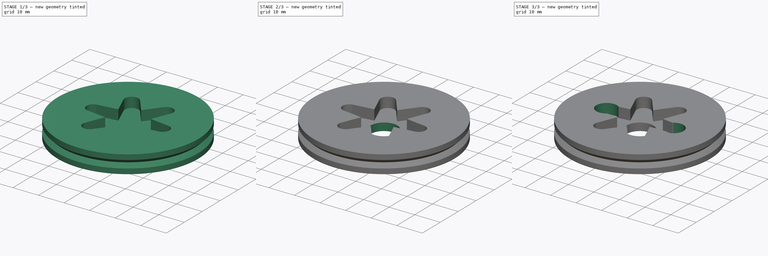
[diagram: build sequence overview — one tinted view per stage of 3, left to right]
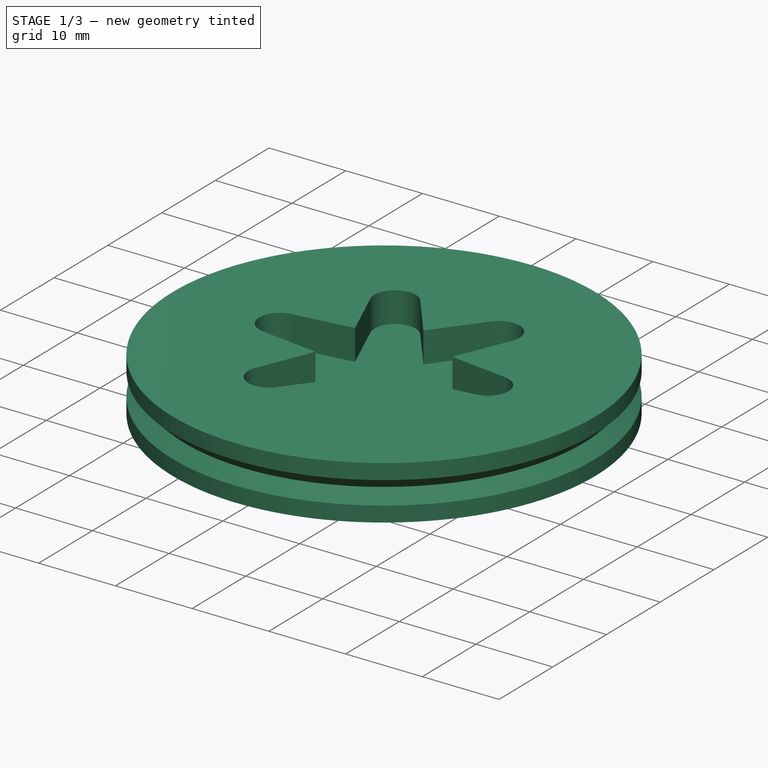
[diagram: stage 1 of 3 — iso view after this stage's code; geometry added in this stage tinted green]
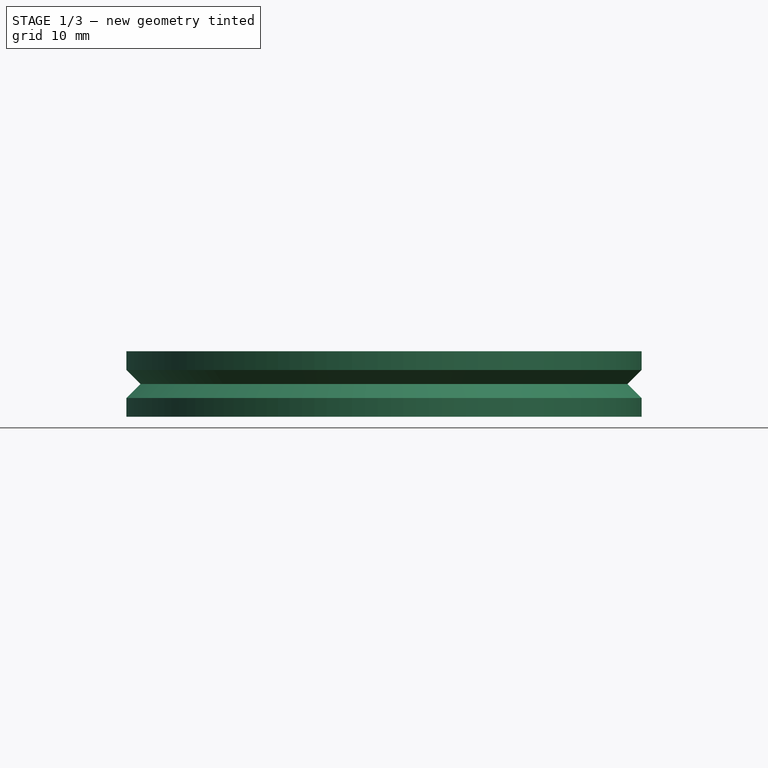
[diagram: stage 1 of 3 — front view after this stage's code; geometry added in this stage tinted green]
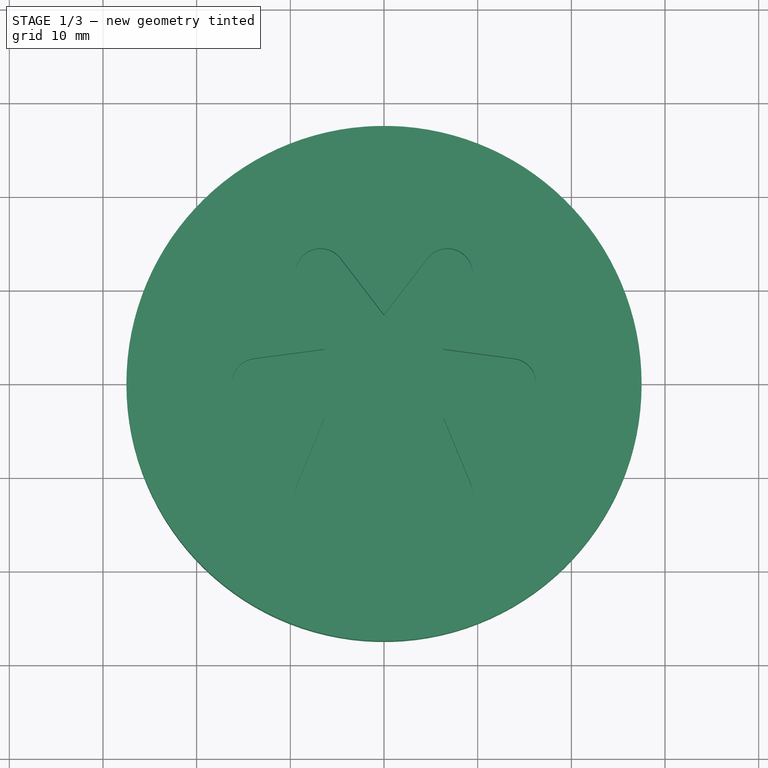
[diagram: stage 1 of 3 — top view after this stage's code; geometry added in this stage tinted green]
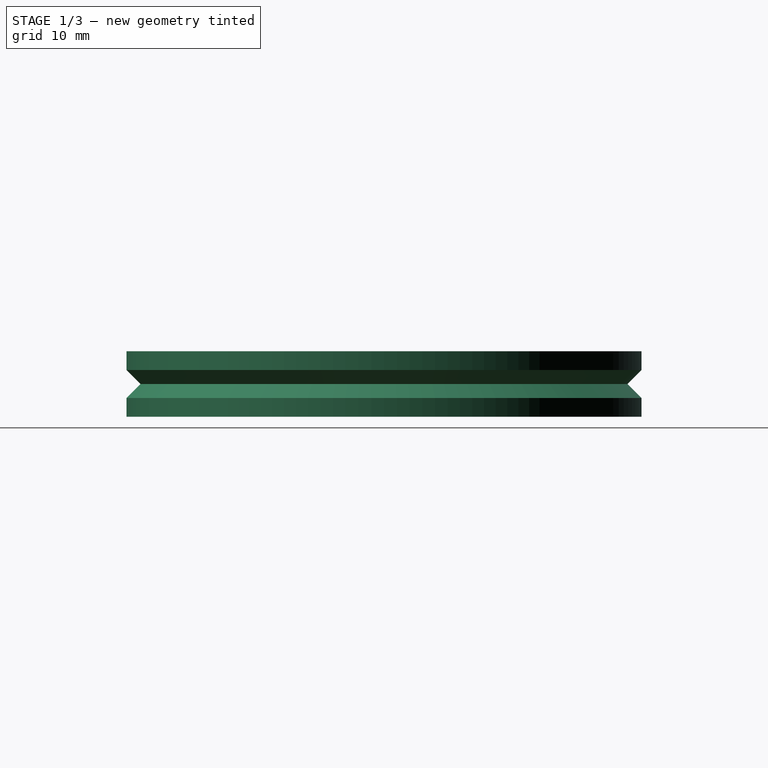
[diagram: stage 1 of 3 — right view after this stage's code; geometry added in this stage tinted green]
FCSTD DOCUMENT  (FreeCAD 0.14R3702 (Git))
Label: Renacuajo-wheel-6-arms-horn
License: CC-BY 3.0
LicenseURL: http://creativecommons.org/licenses/by/3.0/
objects: Sketcher::SketchObject×4, PartDesign::Pocket×3, Part::Feature×2, PartDesign::PolarPattern×2, PartDesign::Revolution×1, Part::Offset×1, Part::Cut×1
note: 18 computed .brp shape members not serialized (recipe doc carries the construction recipe); baked Part::Feature solids carry a one-line shape summary decoded from their .brp

FEATURE [Sketcher::SketchObject] Sketch  label="wheel-generic-sketch"
  Placement = pos=(0,0,0) rot=(1,0,0;1.5708rad)
  sketch-geometry (7):
    g0: LineSegment StartX=0 StartY=-3.5 StartZ=0 EndX=0 EndY=3.5 EndZ=0
    g1: LineSegment StartX=0 StartY=3.5 StartZ=0 EndX=27.5 EndY=3.5 EndZ=0
    g2: LineSegment StartX=27.5 StartY=3.5 StartZ=0 EndX=27.5 EndY=1.5 EndZ=0
    g3: LineSegment StartX=27.5 StartY=1.5 StartZ=0 EndX=26 EndY=0 EndZ=0
    g4: LineSegment StartX=26 StartY=0 StartZ=0 EndX=27.5 EndY=-1.5 EndZ=0
    g5: LineSegment StartX=27.5 StartY=-1.5 StartZ=0 EndX=27.5 EndY=-3.5 EndZ=0
    g6: LineSegment StartX=27.5 StartY=-3.5 StartZ=0 EndX=0 EndY=-3.5 EndZ=0
  constraints (20):
    c: Vertical(g0)
    c: Coincident(g0,g1)
    c: Horizontal(g1)
    c: Coincident(g1,g2)
    c: Vertical(g2)
    c: Coincident(g2,g3)
    c: Coincident(g3,g4)
    c: Coincident(g4,g5)
    c: Coincident(g5,g6)
    c: Coincident(g6,g0)
    c: Horizontal(g6)
    c: Vertical(g5)
    c: PointOnObject(g0,g-2)
    c: Symmetric(g0,g0,g-1)
    c: PointOnObject(g3,g-1)
    c: Symmetric(g4,g2,g-1)
    c: Angle(g3,g-1) = 2.35619
    c: DistanceY(g4,g2) = 3
    c: DistanceX(g1) = 27.5
    c: DistanceY(g0) = 7
FEATURE [PartDesign::Revolution] Revolution  label="wheel-generic"
  Angle = 360
  Axis = (0,0,1)
  Base = (0,0,0)
  Placement = pos=(0,0,0) rot=(1,0,0;1.5708rad)
  ReferenceAxis = -> Sketch [V_Axis]
  Reversed = true
  Sketch = -> Sketch
FEATURE [Part::Feature] Fusion001  label="6-arm-horn-body"
  shape: bbox 31.9 x 28.27 x 6 mm, 26 faces (baked)
FEATURE [Part::Offset] Offset001  label="horn-body-offset"
  Fill = false
  Intersection = false
  Join = 2
  Mode = 0
  Placement = pos=(0,0,-0.2) rot=(0,0,1;0rad)
  SelfIntersection = false
  Source = -> Fusion001
  Value = 0.29
FEATURE [Part::Cut] Cut  label="wheel-horn-room"
  Base = -> Revolution
  Tool = -> Offset001
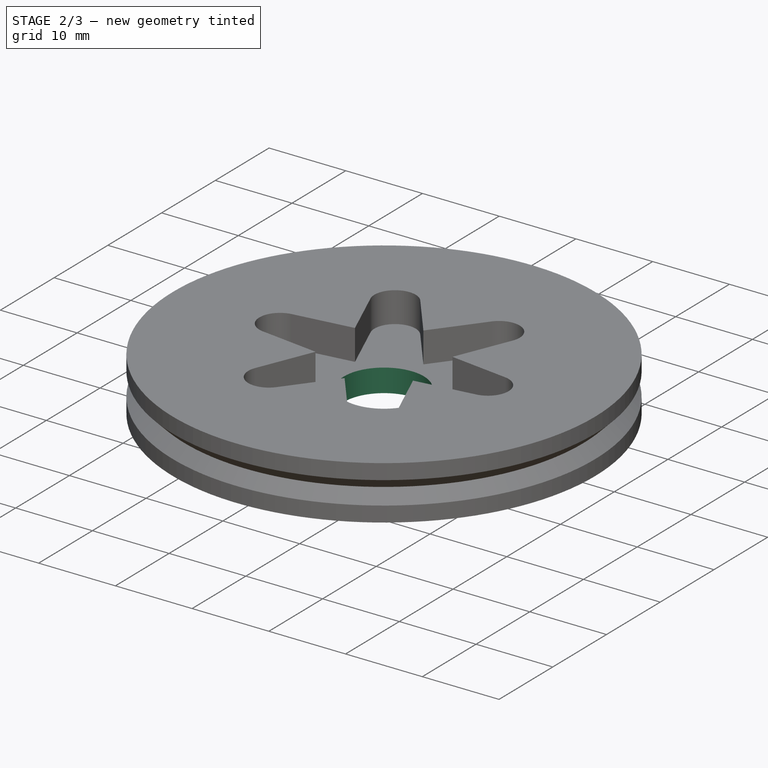
[diagram: stage 2 of 3 — iso view after this stage's code; geometry added in this stage tinted green]
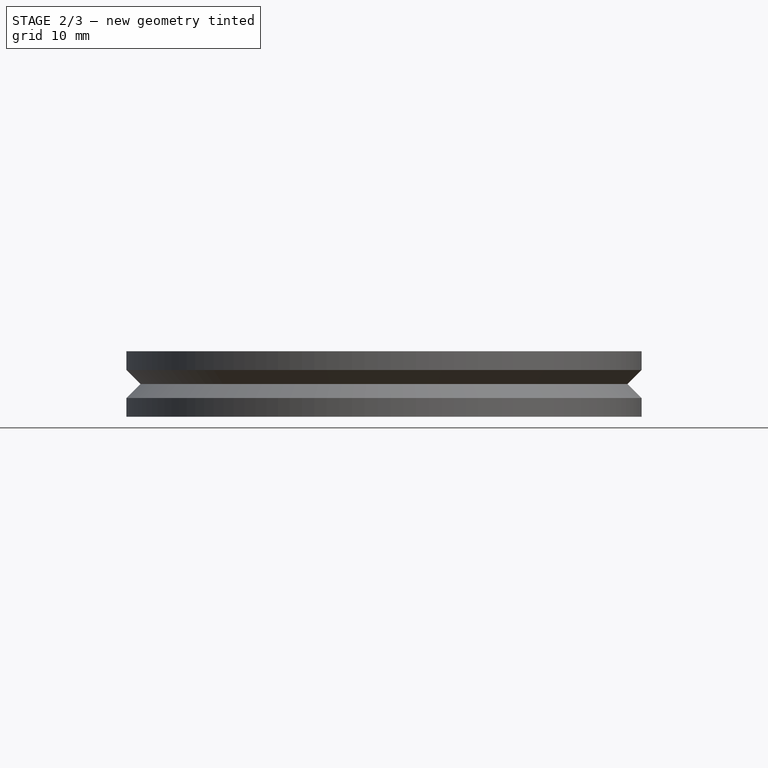
[diagram: stage 2 of 3 — front view after this stage's code; geometry added in this stage tinted green]
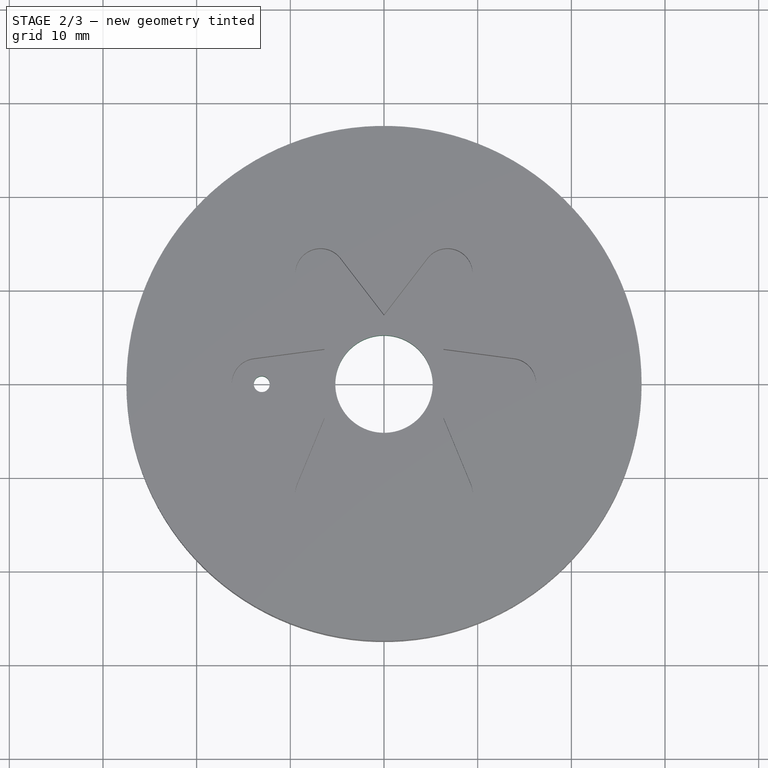
[diagram: stage 2 of 3 — top view after this stage's code; geometry added in this stage tinted green]
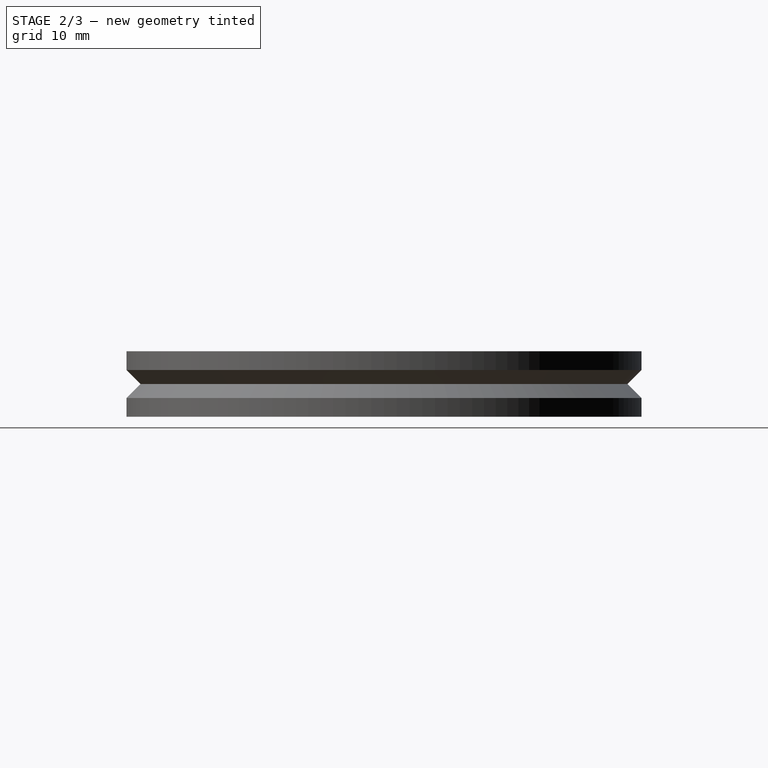
[diagram: stage 2 of 3 — right view after this stage's code; geometry added in this stage tinted green]
FEATURE [Sketcher::SketchObject] Sketch001  label="shaft-drill-sketch"
  Placement = pos=(0,0,-0.49) rot=(0,0,1;0rad)
  Support = -> Cut [Face28]
  sketch-geometry (1):
    g0: Circle CenterX=0 CenterY=0 CenterZ=0 NormalX=0 NormalY=0 NormalZ=1 Radius=5.2
  constraints (2):
    c: Coincident(g0,g-1)
    c: Radius(g0) = 5.2
FEATURE [PartDesign::Pocket] Pocket  label="shaft-drill"
  Length = 5
  Sketch = -> Sketch001
  Type = 1
FEATURE [Sketcher::SketchObject] Sketch002  label="horn-drill-master-sketch"
  Placement = pos=(0,0,-0.49) rot=(0,0,1;0rad)
  Support = -> Pocket [Face28]
  sketch-geometry (1):
    g0: Circle CenterX=-13.05 CenterY=0 CenterZ=0 NormalX=0 NormalY=0 NormalZ=1 Radius=0.85
  constraints (3):
    c: PointOnObject(g0,g-1)
    c: Radius(g0) = 0.85
    c: DistanceX(g-1,g0) = -13.05
FEATURE [PartDesign::Pocket] Pocket001  label="horn-drill-master"
  Length = 5
  Sketch = -> Sketch002
  Type = 1
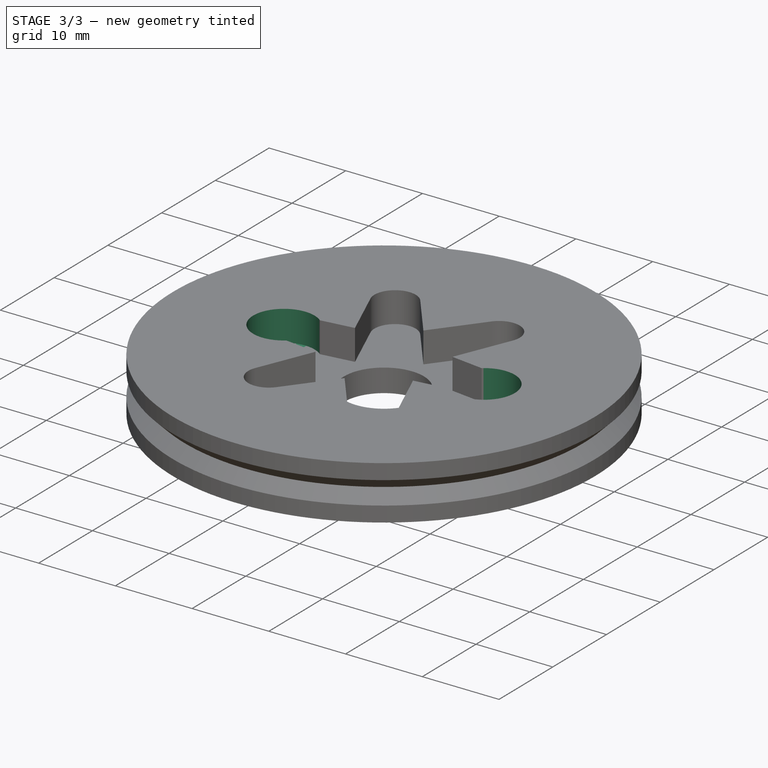
[diagram: stage 3 of 3 — iso view after this stage's code; geometry added in this stage tinted green]
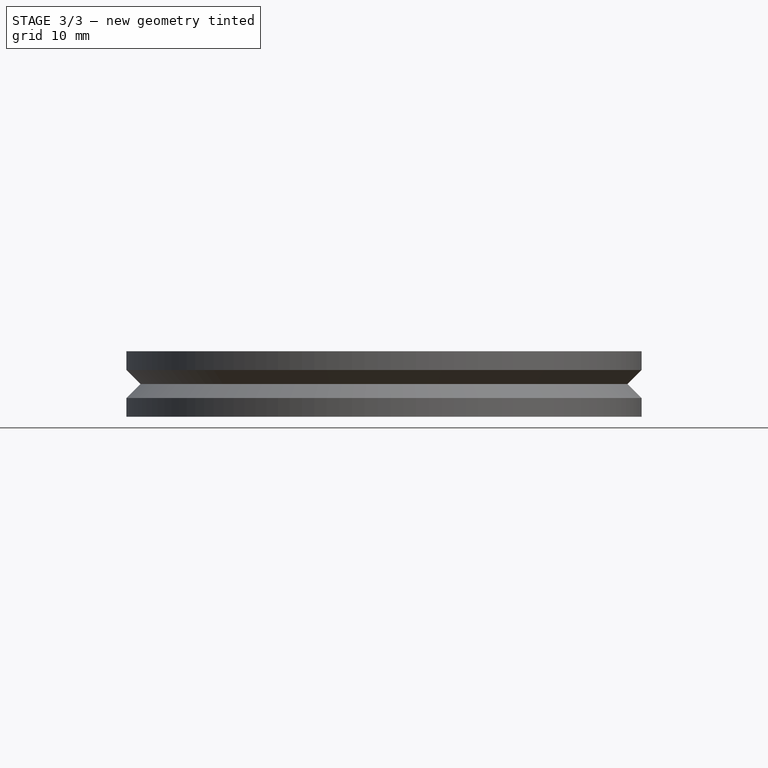
[diagram: stage 3 of 3 — front view after this stage's code; geometry added in this stage tinted green]
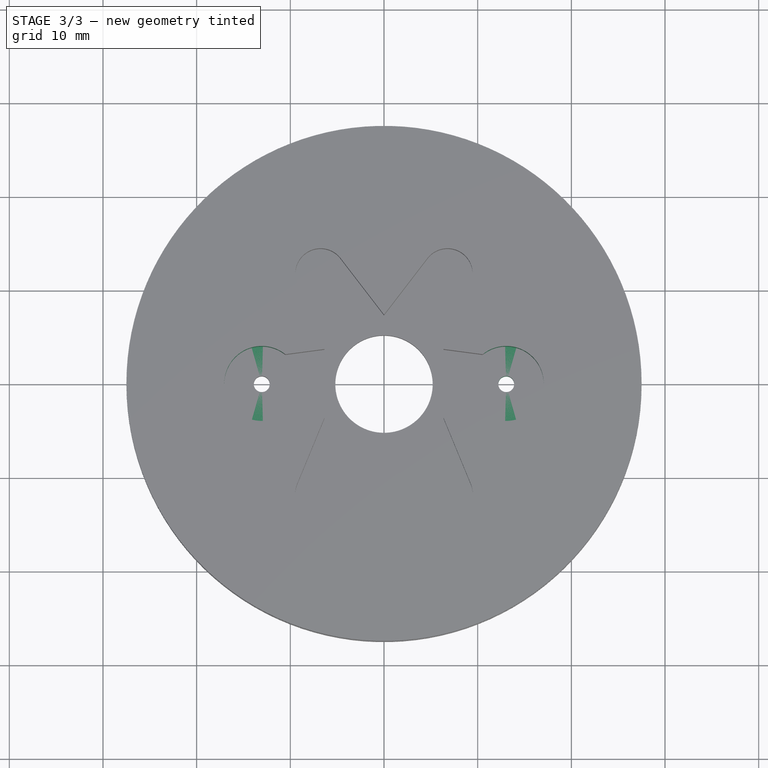
[diagram: stage 3 of 3 — top view after this stage's code; geometry added in this stage tinted green]
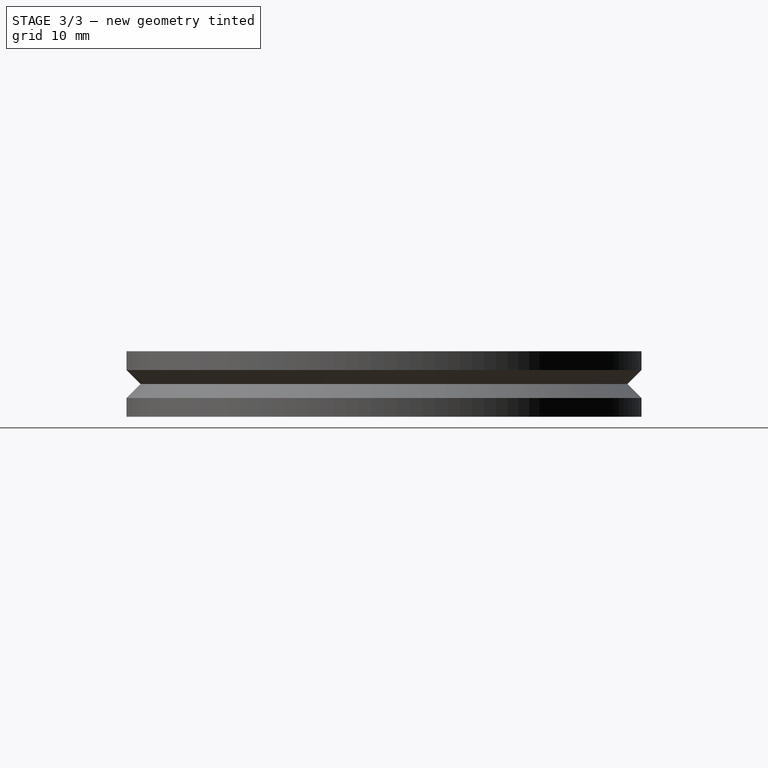
[diagram: stage 3 of 3 — right view after this stage's code; geometry added in this stage tinted green]
FEATURE [PartDesign::PolarPattern] PolarPattern  label="horn-drills"
  Angle = 360
  Axis = -> Sketch002 [N_Axis]
  Occurrences = 2
  Originals = -> [Pocket001]
FEATURE [Sketcher::SketchObject] Sketch003  label="horn-screw-room-sketch"
  Placement = pos=(0,0,3.5) rot=(0,0,1;0rad)
  Support = -> PolarPattern [Face1]
  sketch-geometry (1):
    g0: Circle CenterX=-13.05 CenterY=0 CenterZ=0 NormalX=0 NormalY=0 NormalZ=1 Radius=4
  constraints (3):
    c: PointOnObject(g0,g-1)
    c: Radius(g0) = 4
    c: DistanceX(g-1,g0) = -13.05
FEATURE [PartDesign::Pocket] Pocket002  label="horn-screw-room-master"
  Length = 3.99
  Sketch = -> Sketch003
  Type = 0
FEATURE [PartDesign::PolarPattern] PolarPattern001  label="horn-screws-room"
  Angle = 360
  Axis = -> Sketch003 [N_Axis]
  Occurrences = 2
  Originals = -> [Pocket002]
FEATURE [Part::Feature] PolarPattern001001  label="Renacuajo-wheel-6-arms-horn-final"
  shape: bbox 55 x 55 x 7.002 mm, 34 faces (baked)
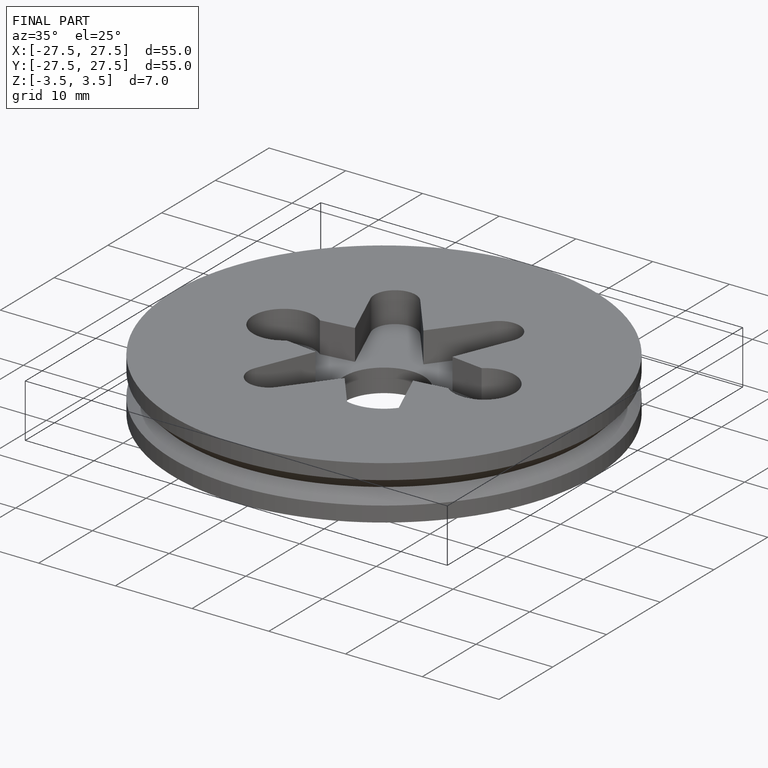
[diagram: finished part — iso view with bounding-box wireframe]
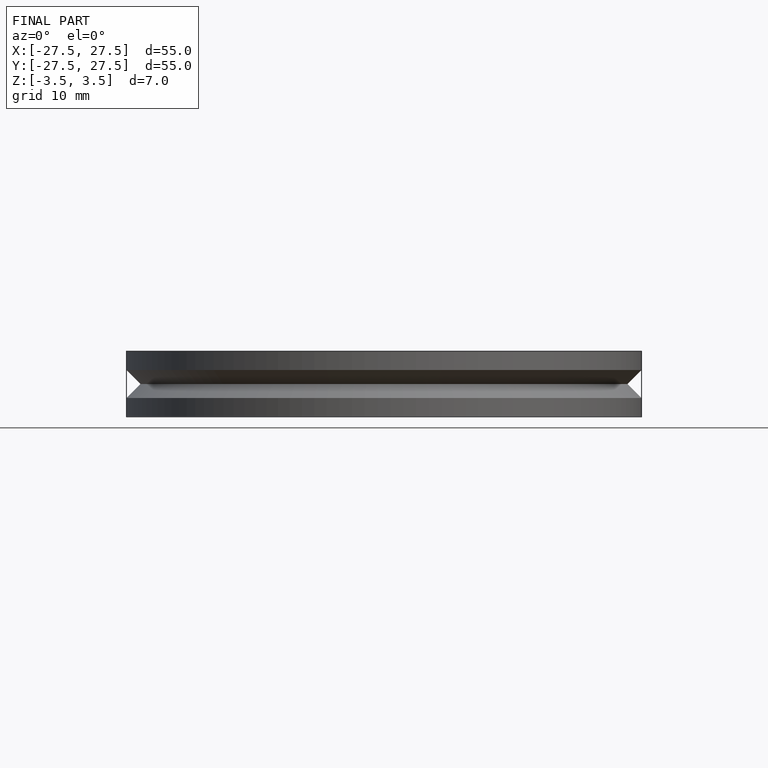
[diagram: finished part — front view with bounding-box wireframe]
